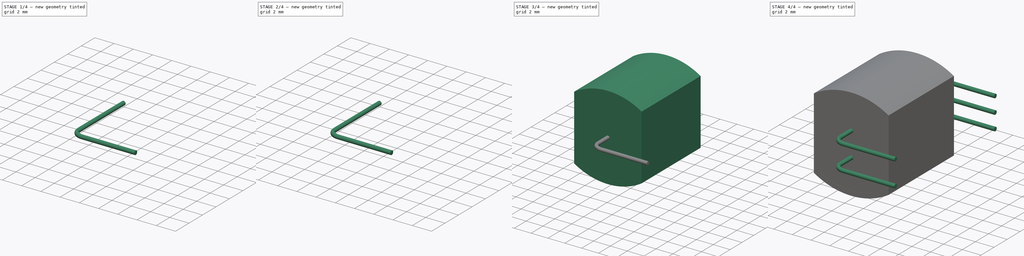
[diagram: build sequence overview — one tinted view per stage of 4, left to right]
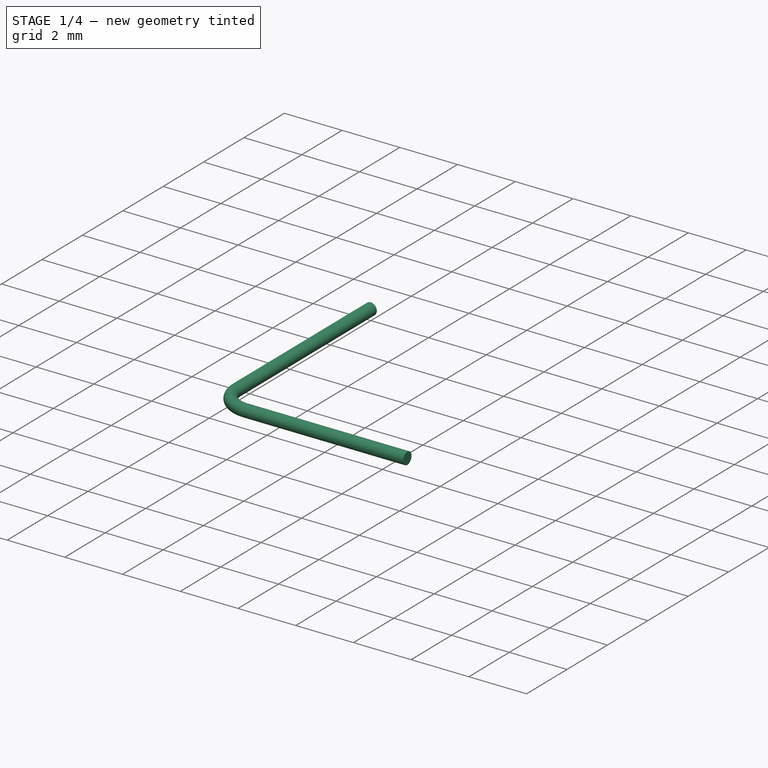
[diagram: stage 1 of 4 — iso view after this stage's code; geometry added in this stage tinted green]
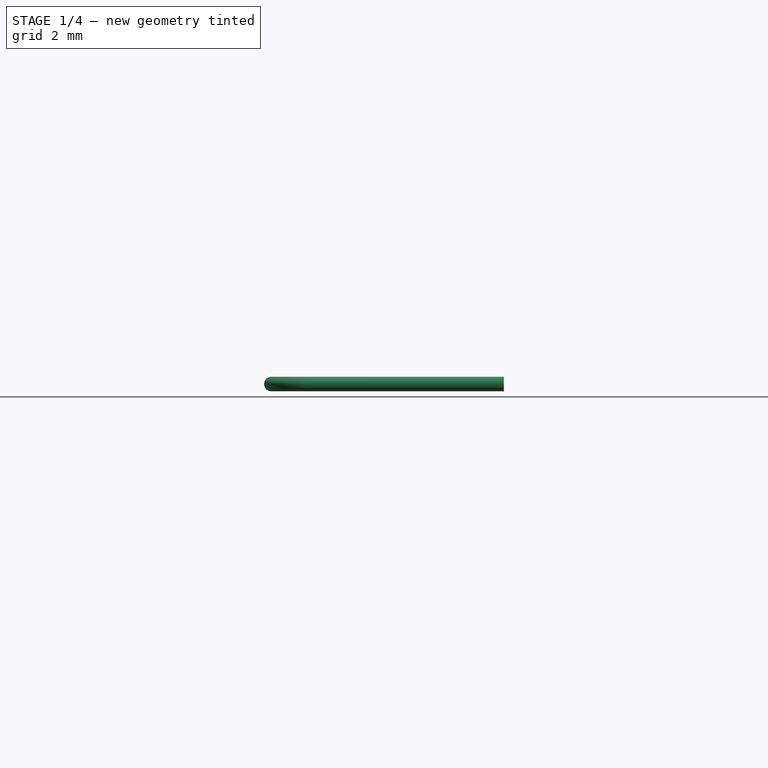
[diagram: stage 1 of 4 — front view after this stage's code; geometry added in this stage tinted green]
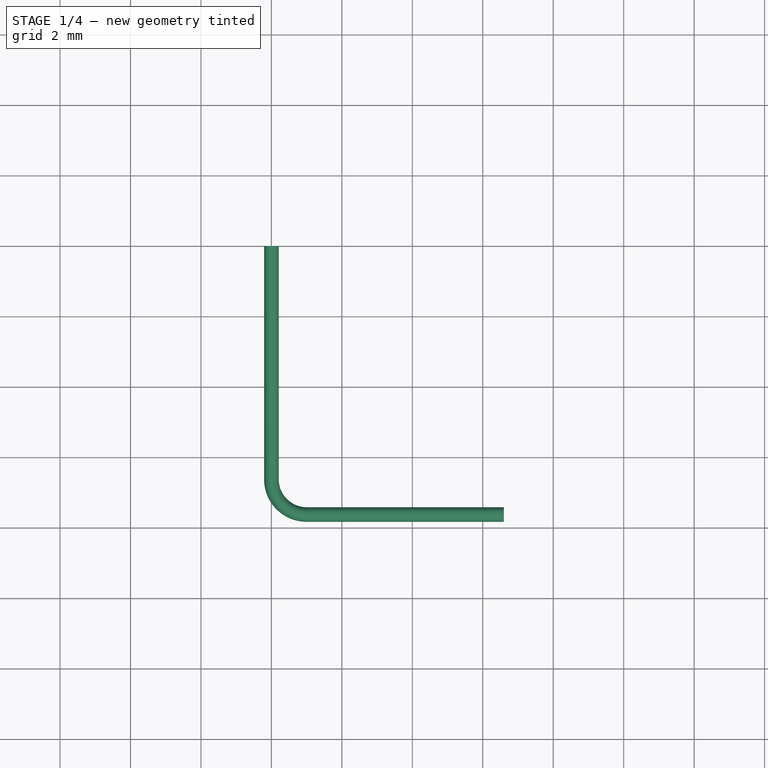
[diagram: stage 1 of 4 — top view after this stage's code; geometry added in this stage tinted green]
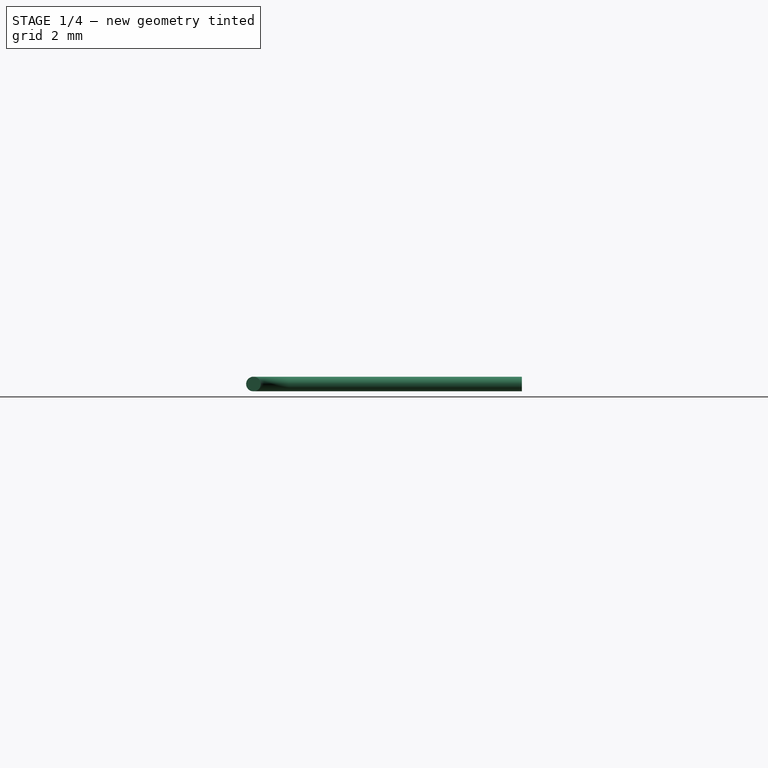
[diagram: stage 1 of 4 — right view after this stage's code; geometry added in this stage tinted green]
FCSTD DOCUMENT  (FreeCAD 0.19R16945 (Git))
Label: Xvive_VTL5C3_2
License: All rights reserved
LicenseURL: http://en.wikipedia.org/wiki/All_rights_reserved
objects: PartDesign::Body×7, PartDesign::FeatureBase×5, Sketcher::SketchObject×4, Part::Part2DObjectPython×2, Part::Extrusion×2, PartDesign::Pad×1, PartDesign::Pocket×1, PartDesign::Mirrored×1, PartDesign::AdditivePipe×1, Spreadsheet::Sheet×1, Part::MultiFuse×1
note: 28 computed .brp shape members not serialized (recipe doc carries the construction recipe); baked Part::Feature solids carry a one-line shape summary decoded from their .brp

FEATURE [PartDesign::Body] Body
  Group = -> [Sketch,Pad,Sketch001,Pocket,Mirrored]
  Origin = -> Origin
  Tip = -> Mirrored
FEATURE [Sketcher::SketchObject] Sketch004  label="LeadDiameter"
  AttachmentOffset = pos=(0,0,4) rot=(0,0,1;0rad)
  MapMode = 5
  Placement = pos=(0,-4,-9e-16) rot=(1,0,0;1.5708rad)
  Support = -> [XZ_Plane002]
  expr: AttachmentOffset.Base.z = Spreadsheet.bodylength / 2 - 1mm
  expr: AttachmentOffset.Base.y = 0
  expr: Constraints[1] = Spreadsheet.leaddialed / 2
  sketch-geometry (1):
    g0: Circle CenterX=0 CenterY=0 CenterZ=0 NormalX=0 NormalY=0 NormalZ=1 AngleXU=0 Radius=0.2075
  constraints (2):
    c: Coincident(g0,g-1)
    c: Radius(g0) = 0.2075
FEATURE [Sketcher::SketchObject] Sketch005  label="LeadProfile"
  MapMode = 5
  Support = -> [XY_Plane002]
  expr: Constraints[6] = Spreadsheet.leadpitch / 2
  expr: Constraints[7] = Spreadsheet.bodyheight / 2 + Spreadsheet.leadextralength
  sketch-geometry (3):
    g0: LineSegment StartX=0 StartY=0 StartZ=0 EndX=0 EndY=-6.62 EndZ=0
    g1: LineSegment StartX=1 StartY=-7.62 StartZ=0 EndX=6.6 EndY=-7.62 EndZ=0
    g2: ArcOfCircle CenterX=1 CenterY=-6.62 CenterZ=0 NormalX=0 NormalY=0 NormalZ=1 AngleXU=0 Radius=1 StartAngle=3.14159 EndAngle=4.71239
  constraints (8):
    c: Coincident(g0,g-1)
    c: Horizontal(g1)
    c: Tangent(g0,g2) = -1.5708
    c: Tangent(g1,g2) = -1.5708
    c: Radius(g2) = 1
    c: PointOnObject(g0,g-2)
    c: DistanceY(g1,g0) = 7.62
    c: DistanceX(g0,g1) = 6.6
FEATURE [PartDesign::AdditivePipe] AdditivePipe
  AuxilleryCurvelinear = true
  AuxillerySpineTangent = false
  Binormal = (0,0,0)
  Mode = 0
  Placement = pos=(0,0,0) rot=(1,0,0;1.5708rad)
  Profile = -> Sketch004
  Spine = -> Sketch005
  SpineTangent = false
  Transformation = 0
  Transition = 0
FEATURE [PartDesign::Body] Body005  label="LeadCloneLDR1"
  Group = -> [Clone002]
  Origin = -> Origin005
  Placement = pos=(0,0,1.6) rot=(-1,0,0;3.14159rad)
  Tip = -> Clone002
  expr: Placement.Base.z = Spreadsheet.leadpitchldr / 2
FEATURE [PartDesign::FeatureBase] Clone003
  BaseFeature = -> Body002
FEATURE [PartDesign::Body] Body006  label="LeadCloneLDR2"
  Group = -> [Clone003]
  Origin = -> Origin006
  Placement = pos=(0,0,-1.6) rot=(-1,0,0;3.14159rad)
  Tip = -> Clone003
  expr: Placement.Base.z = -Spreadsheet.leadpitchldr / 2
FEATURE [PartDesign::FeatureBase] Clone004
  BaseFeature = -> Body002
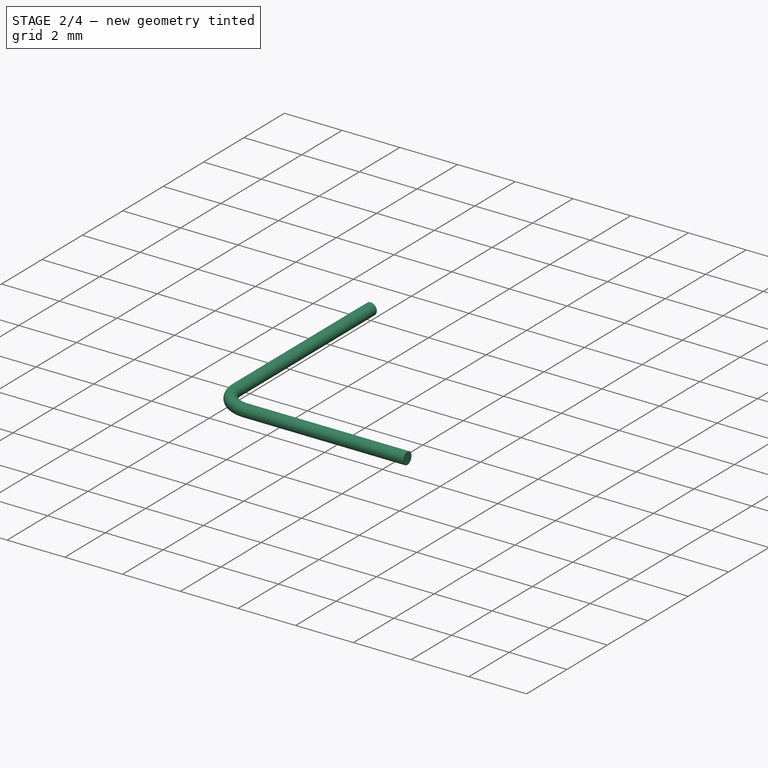
[diagram: stage 2 of 4 — iso view after this stage's code; geometry added in this stage tinted green]
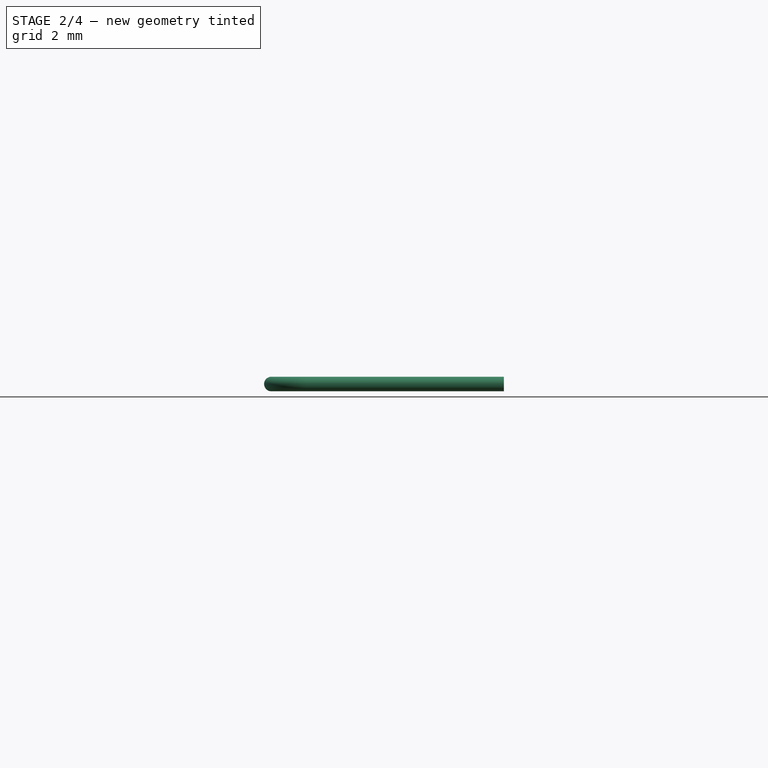
[diagram: stage 2 of 4 — front view after this stage's code; geometry added in this stage tinted green]
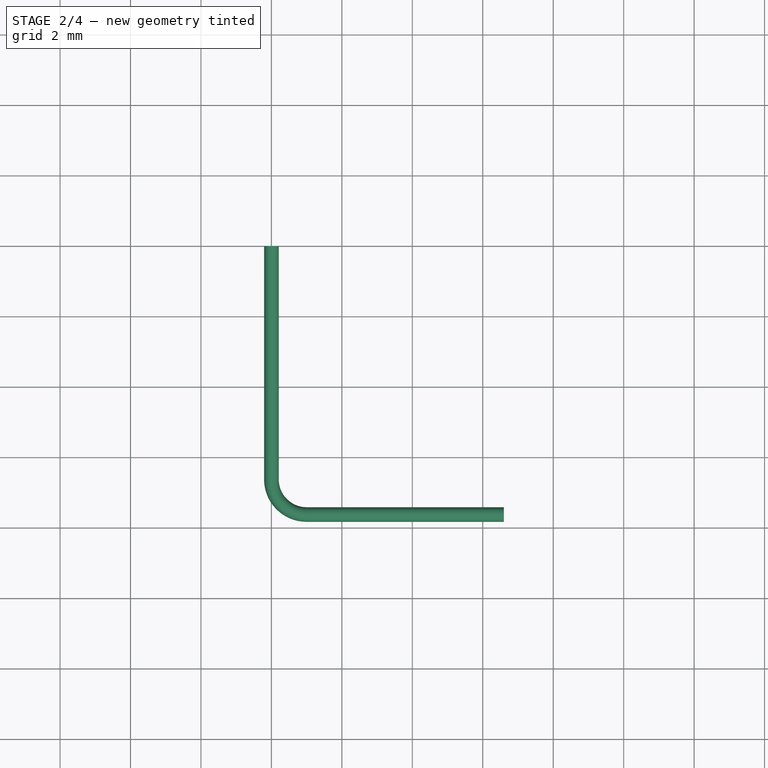
[diagram: stage 2 of 4 — top view after this stage's code; geometry added in this stage tinted green]
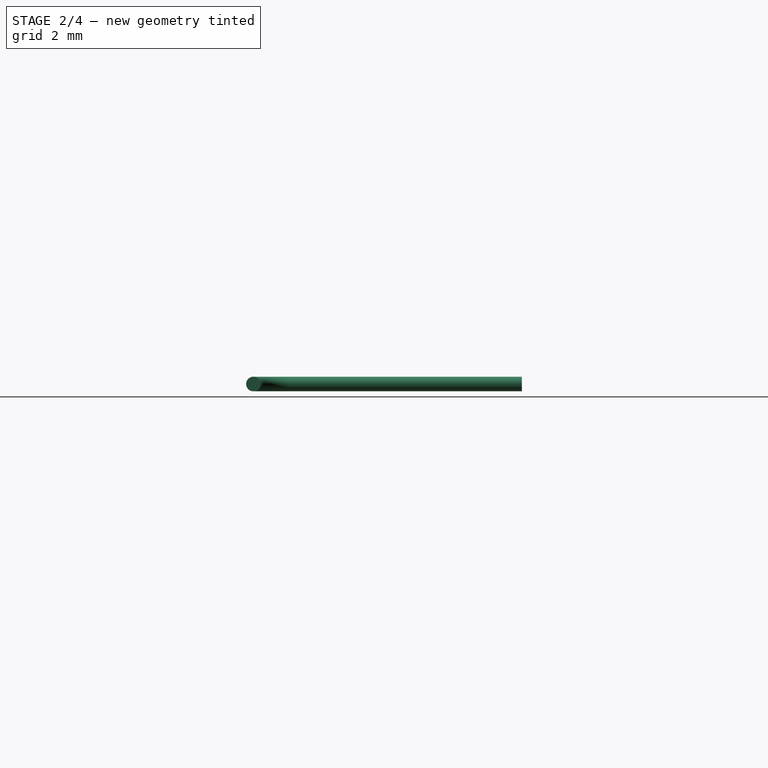
[diagram: stage 2 of 4 — right view after this stage's code; geometry added in this stage tinted green]
FEATURE [PartDesign::FeatureBase] Clone
  BaseFeature = -> Body002
FEATURE [PartDesign::Body] Body003  label="LeadCloneLED1"
  Group = -> [Clone]
  Origin = -> Origin003
  Placement = pos=(0,0,1.3) rot=(0,0,1;0rad)
  Tip = -> Clone
  expr: Placement.Base.z = Spreadsheet.leadpitchled / 2
FEATURE [PartDesign::FeatureBase] Clone001
  BaseFeature = -> Body002
FEATURE [PartDesign::Body] Body004  label="LeadCloneLED2"
  Group = -> [Clone001]
  Origin = -> Origin004
  Placement = pos=(0,0,-1.3) rot=(0,0,1;0rad)
  Tip = -> Clone001
  expr: Placement.Base.z = -Spreadsheet.leadpitchled / 2
FEATURE [PartDesign::FeatureBase] Clone002
  BaseFeature = -> Body002
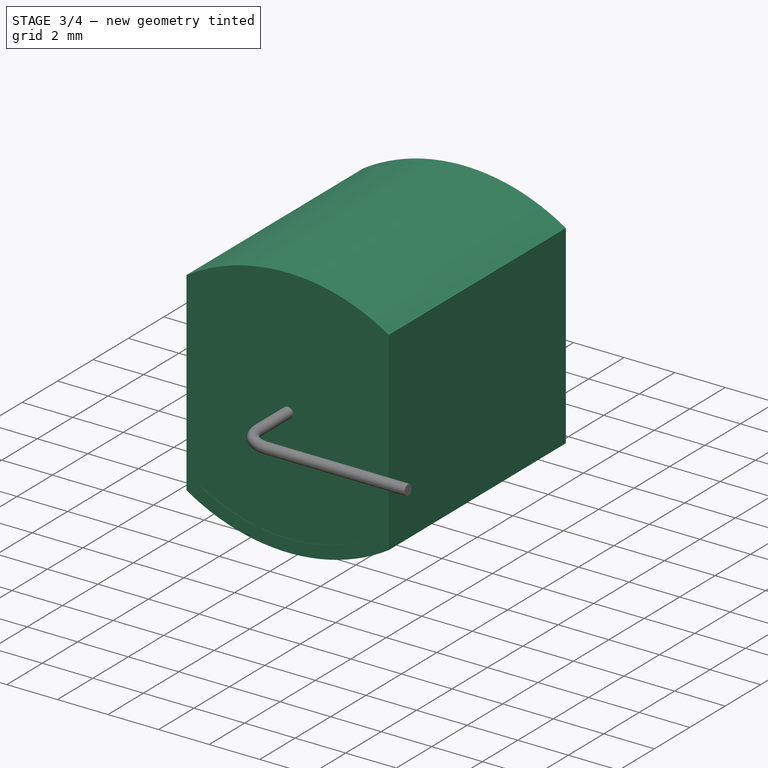
[diagram: stage 3 of 4 — iso view after this stage's code; geometry added in this stage tinted green]
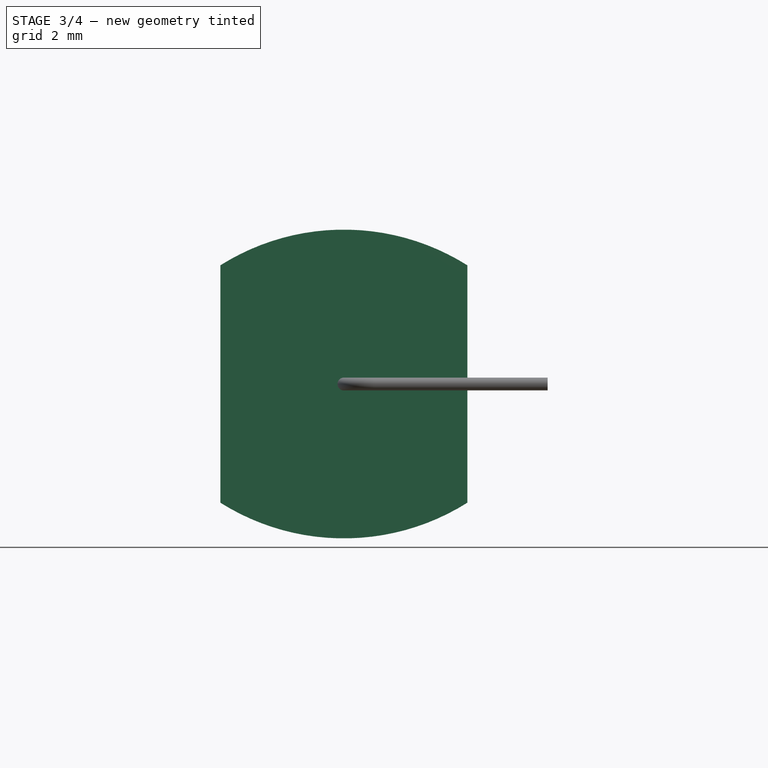
[diagram: stage 3 of 4 — front view after this stage's code; geometry added in this stage tinted green]
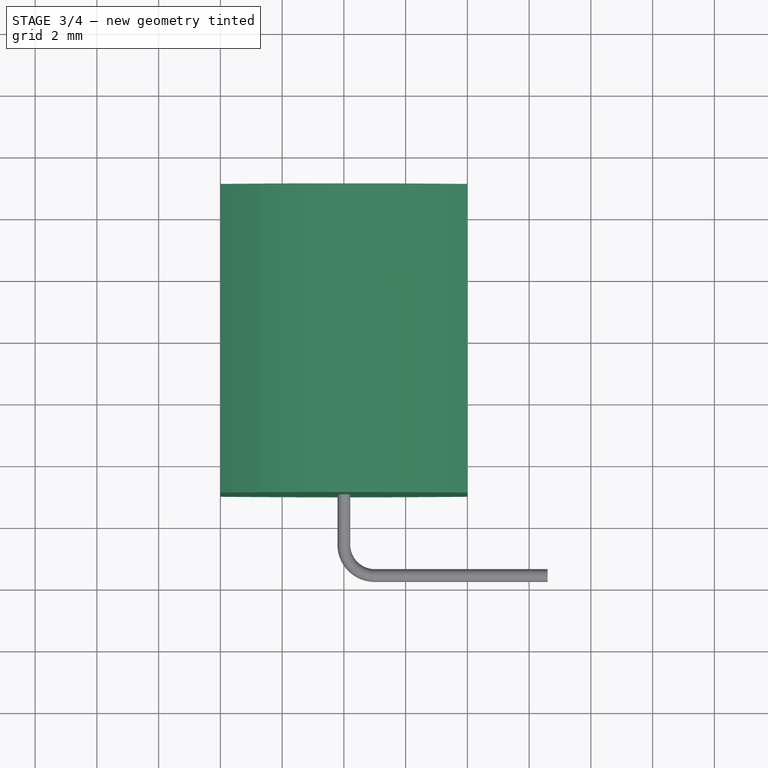
[diagram: stage 3 of 4 — top view after this stage's code; geometry added in this stage tinted green]
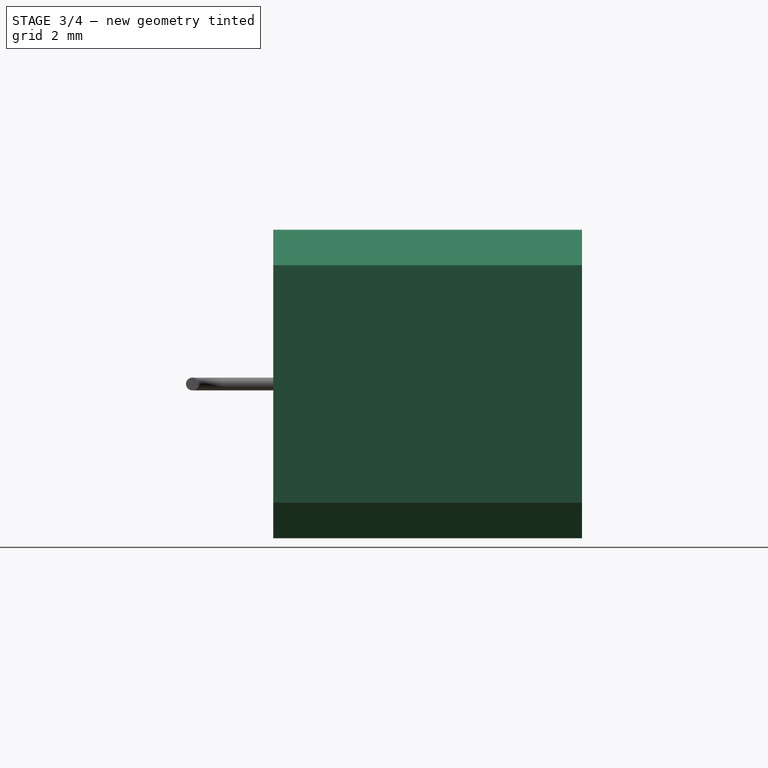
[diagram: stage 3 of 4 — right view after this stage's code; geometry added in this stage tinted green]
FEATURE [Sketcher::SketchObject] Sketch
  MapMode = 5
  Placement = pos=(0,0,0) rot=(1,0,0;1.5708rad)
  Support = -> [XZ_Plane]
  expr: Constraints[12] = Spreadsheet.bodyheight
  expr: Constraints[13] = Spreadsheet.bodylength
  sketch-geometry (6):
    g0: LineSegment StartX=-4 StartY=3.84429 StartZ=0 EndX=-4 EndY=-3.84429 EndZ=0
    g1: LineSegment StartX=4 StartY=3.84429 StartZ=0 EndX=4 EndY=-3.84429 EndZ=0
    g2: ArcOfCircle CenterX=0 CenterY=-2.5 CenterZ=0 NormalX=0 NormalY=0 NormalZ=1 AngleXU=0 Radius=7.5 StartAngle=1.00826 EndAngle=2.13333
    g3: ArcOfCircle CenterX=0 CenterY=2.5 CenterZ=0 NormalX=0 NormalY=0 NormalZ=1 AngleXU=0 Radius=7.5 StartAngle=4.14985 EndAngle=5.27493
    g4: GeomPoint X=0 Y=5 Z=0
    g5: GeomPoint X=0 Y=-5 Z=0
  constraints (16):
    c: Vertical(g1)
    c: PointOnObject(g2,g-2)
    c: Coincident(g2,g0)
    c: Coincident(g2,g1)
    c: PointOnObject(g3,g-2)
    c: Coincident(g3,g0)
    c: Coincident(g3,g1)
    c: PointOnObject(g4,g2)
    c: PointOnObject(g5,g3)
    c: PointOnObject(g4,g-2)
    c: Symmetric(g0,g0,g-1)
    c: Equal(g2,g3)
    c: DistanceX(g0,g1) = 8
    c: DistanceY(g5,g4) = 10
    c: Equal(g1,g0)
    c: Symmetric(g5,g-1,g2)
FEATURE [PartDesign::Pad] Pad
  Length = 10
  Length2 = 100
  Midplane = true
  Placement = pos=(0,0,0) rot=(1,0,0;1.5708rad)
  Profile = -> Sketch
  Type = 0
FEATURE [Sketcher::SketchObject] Sketch001
  MapMode = 5
  Placement = pos=(0,-5,-1.1e-15) rot=(1,0,0;1.5708rad)
  Support = -> [Pad]
  expr: Constraints[13] = Sketch.Constraints[13] - 1mm
  expr: Constraints[12] = Sketch.Constraints[12] - 1mm
  sketch-geometry (6):
    g0: LineSegment StartX=-3.5 StartY=3.5217 StartZ=0 EndX=-3.5 EndY=-3.5217 EndZ=0
    g1: LineSegment StartX=3.5 StartY=3.5217 StartZ=0 EndX=3.5 EndY=-3.5217 EndZ=0
    g2: ArcOfCircle CenterX=0 CenterY=-2.25 CenterZ=0 NormalX=0 NormalY=0 NormalZ=1 AngleXU=0 Radius=6.75 StartAngle=1.02568 EndAngle=2.11591
    g3: ArcOfCircle CenterX=0 CenterY=2.25 CenterZ=0 NormalX=0 NormalY=0 NormalZ=1 AngleXU=0 Radius=6.75 StartAngle=4.16727 EndAngle=5.25751
    g4: GeomPoint X=0 Y=4.5 Z=0
    g5: GeomPoint X=0 Y=-4.5 Z=0
  constraints (16):
    c: Vertical(g1)
    c: PointOnObject(g2,g-2)
    c: Coincident(g2,g0)
    c: Coincident(g2,g1)
    c: PointOnObject(g3,g-2)
    c: Coincident(g3,g0)
    c: Coincident(g3,g1)
    c: PointOnObject(g4,g2)
    c: PointOnObject(g5,g3)
    c: PointOnObject(g4,g-2)
    c: Symmetric(g0,g0,g-1)
    c: Equal(g2,g3)
    c: DistanceX(g0,g1) = 7
    c: DistanceY(g5,g4) = 9
    c: Equal(g1,g0)
    c: Symmetric(g5,g-1,g2)
FEATURE [PartDesign::Pocket] Pocket
  BaseFeature = -> Pad
  Length = 0.01
  Length2 = 100
  Placement = pos=(0,0,0) rot=(1,0,0;1.5708rad)
  Profile = -> Sketch001
  Type = 0
FEATURE [PartDesign::Mirrored] Mirrored
  BaseFeature = -> Pocket
  MirrorPlane = -> XZ_Plane
  Originals = -> [Pocket]
  Placement = pos=(0,0,0) rot=(1,0,0;1.5708rad)
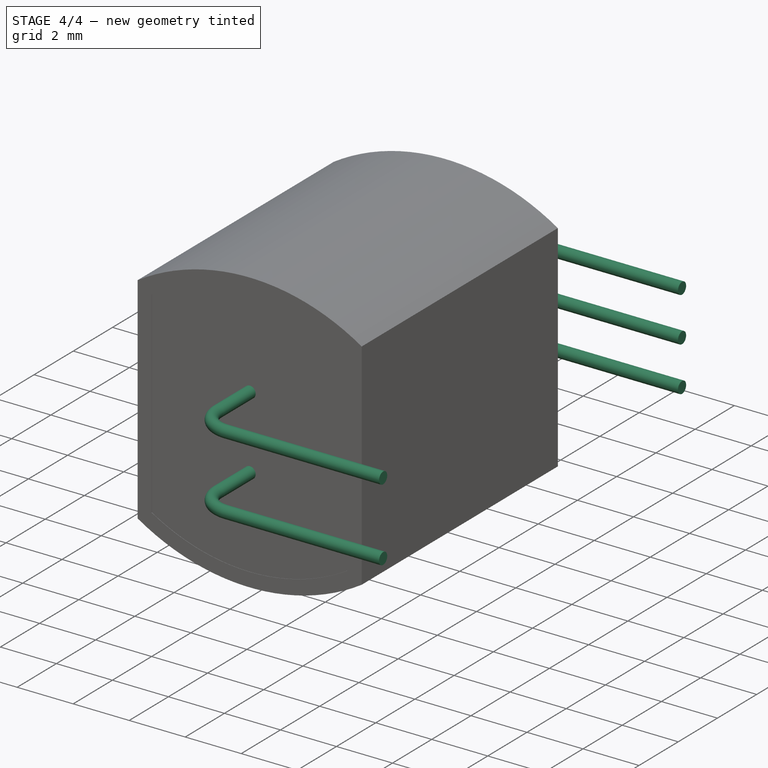
[diagram: stage 4 of 4 — iso view after this stage's code; geometry added in this stage tinted green]
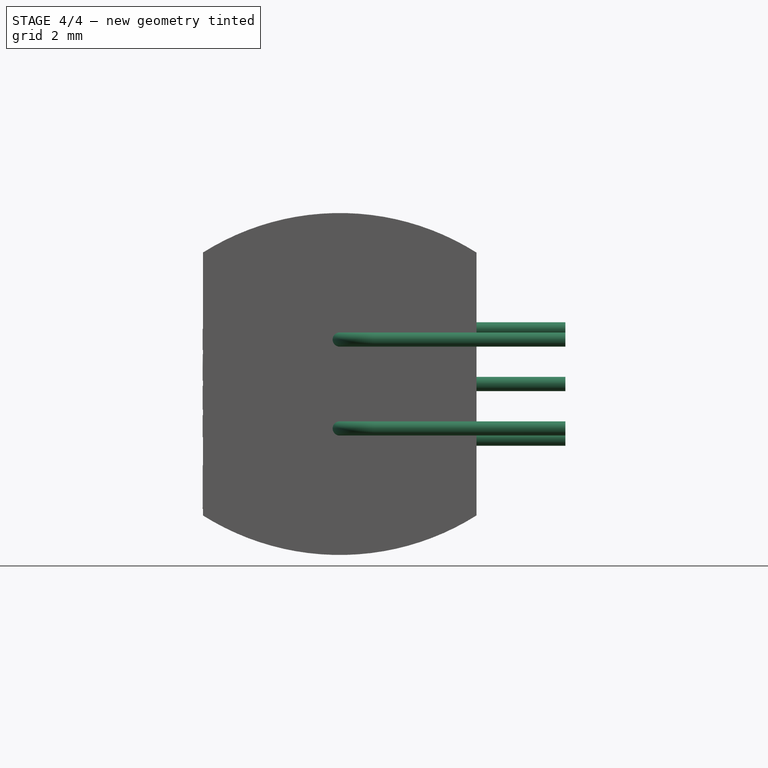
[diagram: stage 4 of 4 — front view after this stage's code; geometry added in this stage tinted green]
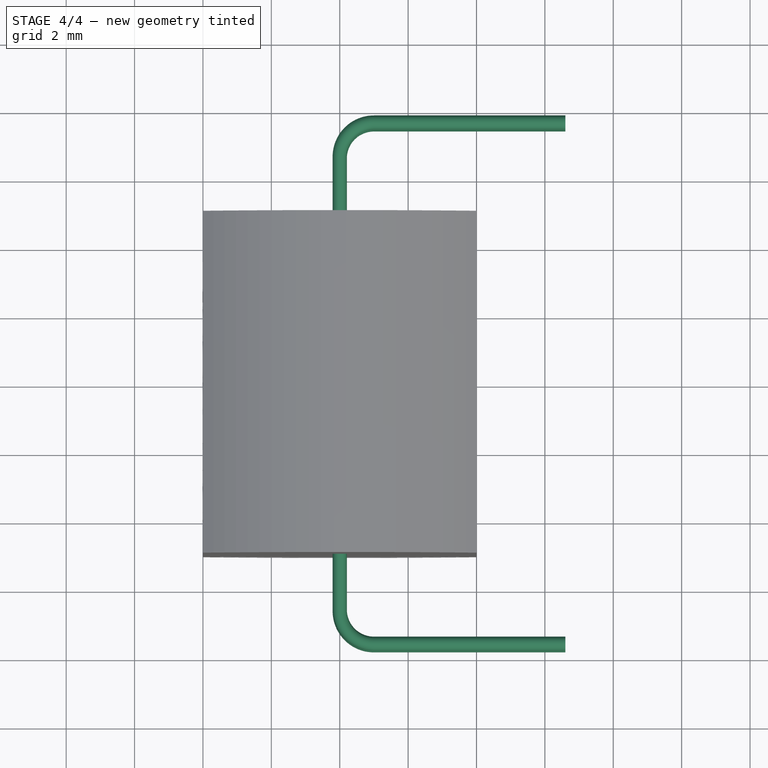
[diagram: stage 4 of 4 — top view after this stage's code; geometry added in this stage tinted green]
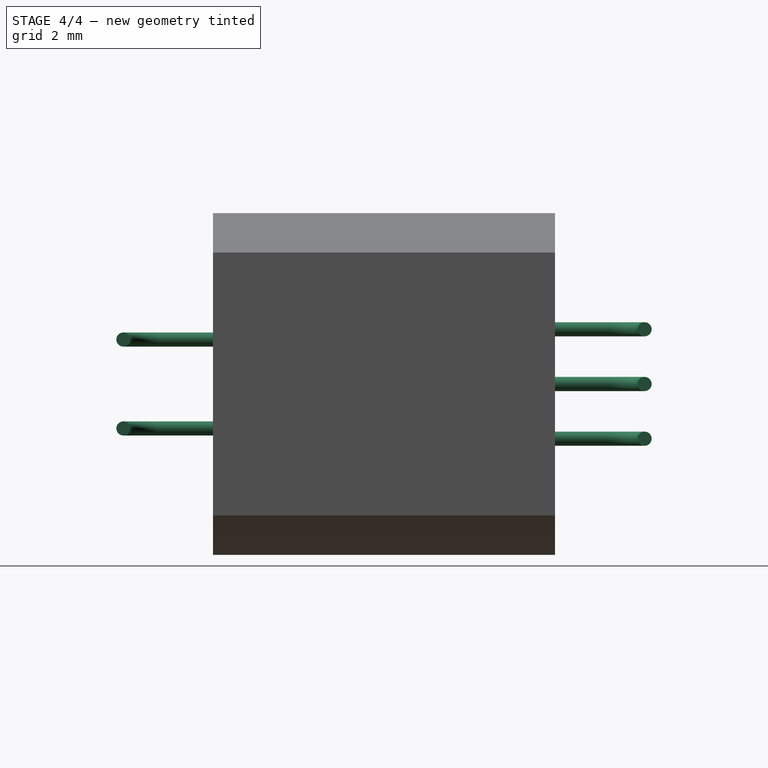
[diagram: stage 4 of 4 — right view after this stage's code; geometry added in this stage tinted green]
FEATURE [PartDesign::Body] Body002  label="Lead"
  Group = -> [Sketch004,Sketch005,AdditivePipe]
  Origin = -> Origin002
  Tip = -> AdditivePipe
FEATURE [Spreadsheet::Sheet] Spreadsheet
  cells = A2=bodylength; B2(bodylength)==10mm; A3=bodyheight; B3(bodyheight)==8mm; A4=pottingmaxheight; B4(pottingmaxheight)==2.5mm; A6=leaddialed; B6(leaddialed)==0.415mm; A7=leadpitchled; B7(leadpitchled)==2.6mm; A8=leadpitchldr; B8(leadpitchldr)==3.2mm; A10=leadpitch; B10(leadpitch)==6 * 2.54mm; A11=leadextralength; B11(leadextralength)==2.6mm
FEATURE [Part::Part2DObjectPython] ShapeString  # Draft 2D object (typed FeaturePython)
  AttachmentOffset = pos=(5.5,-1,0) rot=(0,0,1;3.14159rad)
  FontFile = <userpath>/Desktop/GitHub/freecad-projects/00-fonts/FreeSansBold.ttf
  MapMode = 6
  Placement = pos=(-4,-4,-1.65571) rot=(0,-1,0;1.5708rad)
  Size = 0.5
  String = LED+
  Support = -> [Mirrored]
  Tracking = 0
FEATURE [Part::Extrusion] Extrude  label="MarkingLED"
  Base = -> ShapeString
  Dir = (-1,0,-2e-16)
  DirMode = 2
  FaceMakerClass = Part::FaceMakerBullseye
  LengthFwd = 0.01
  LengthRev = 0
  Solid = false
  Symmetric = false
FEATURE [Part::Part2DObjectPython] ShapeString001  # Draft 2D object (typed FeaturePython)
  AttachmentOffset = pos=(6.25,-1,0) rot=(0,0,1;-1.5708rad)
  FontFile = <userpath>/Desktop/GitHub/freecad-projects/00-fonts/FreeSansBold.ttf
  MapMode = 6
  Placement = pos=(-4,-4,-2.40571) rot=(-0.57735,-0.57735,0.57735;2.0944rad)
  Size = 0.65
  String = VTL5C3/2
  Support = -> [Mirrored]
  Tracking = 0
FEATURE [Part::Extrusion] Extrude001  label="MarkingVTL"
  Base = -> ShapeString001
  Dir = (-1,0,-2e-16)
  DirMode = 2
  FaceMakerClass = Part::FaceMakerBullseye
  LengthFwd = 0.01
  LengthRev = 0
  Solid = false
  Symmetric = false
FEATURE [PartDesign::Body] Body007  label="LeadCloneLDR3"
  Group = -> [Clone004]
  Origin = -> Origin007
  Placement = pos=(0,0,0) rot=(-1,0,0;3.14159rad)
  Tip = -> Clone004
FEATURE [Part::MultiFuse] Fusion  label="Xvive_VTL5C3/2"
  Shapes = -> [Body,Body006,Body005,Body004,Body003,Body007,Extrude,Extrude001]
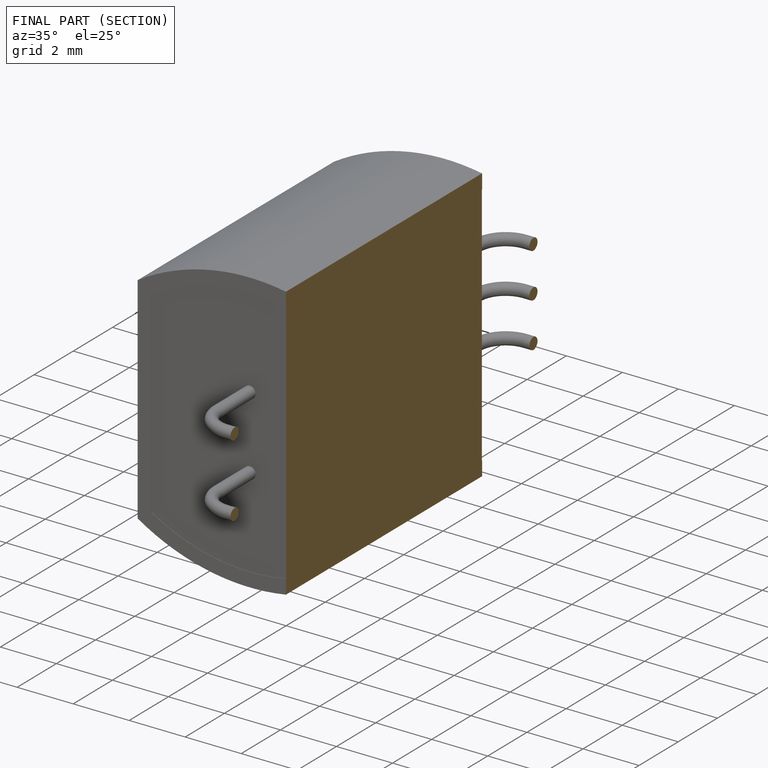
[diagram: finished part — half-section view (interior)]
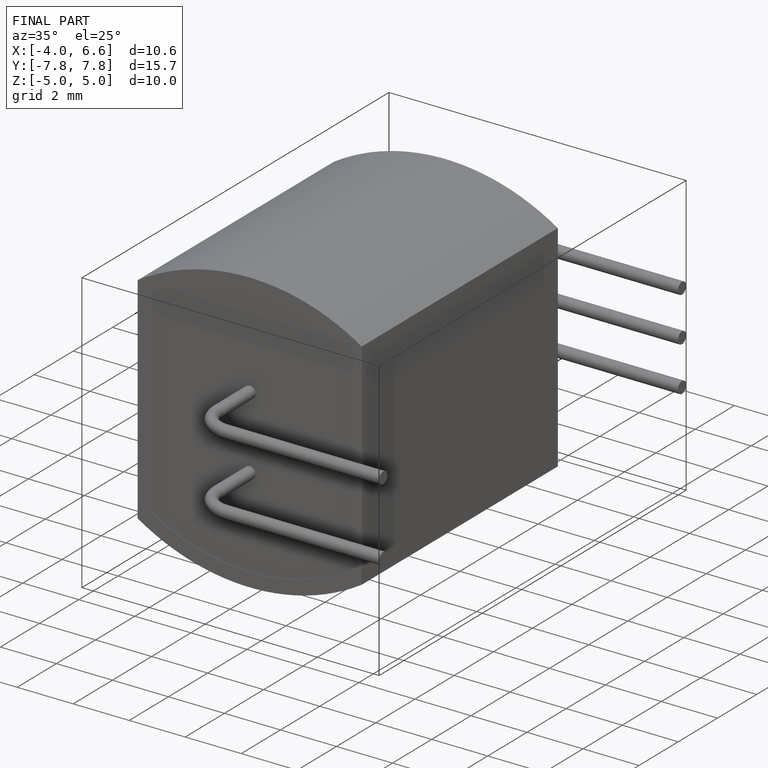
[diagram: finished part — iso view with bounding-box wireframe]
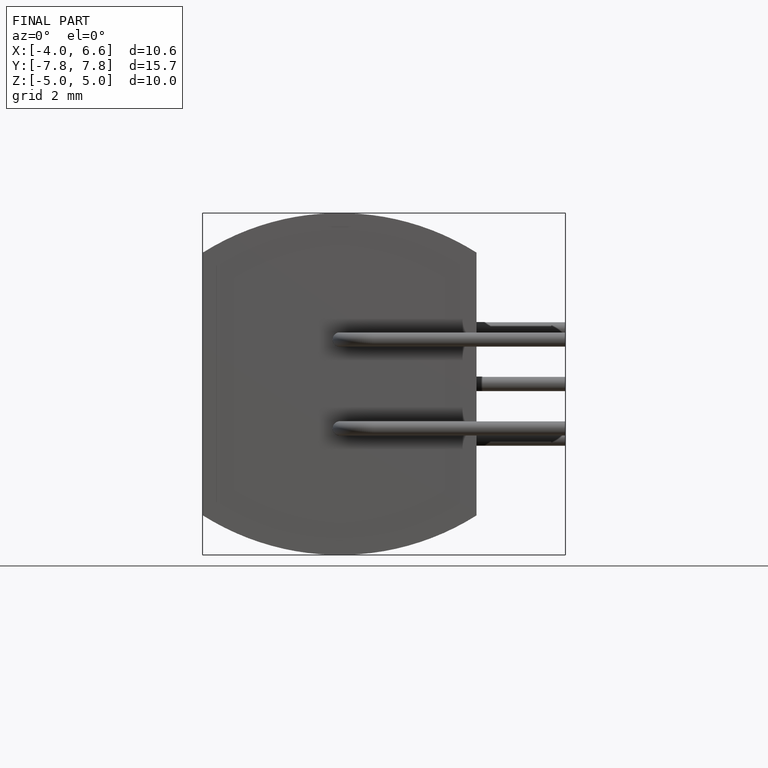
[diagram: finished part — front view with bounding-box wireframe]
